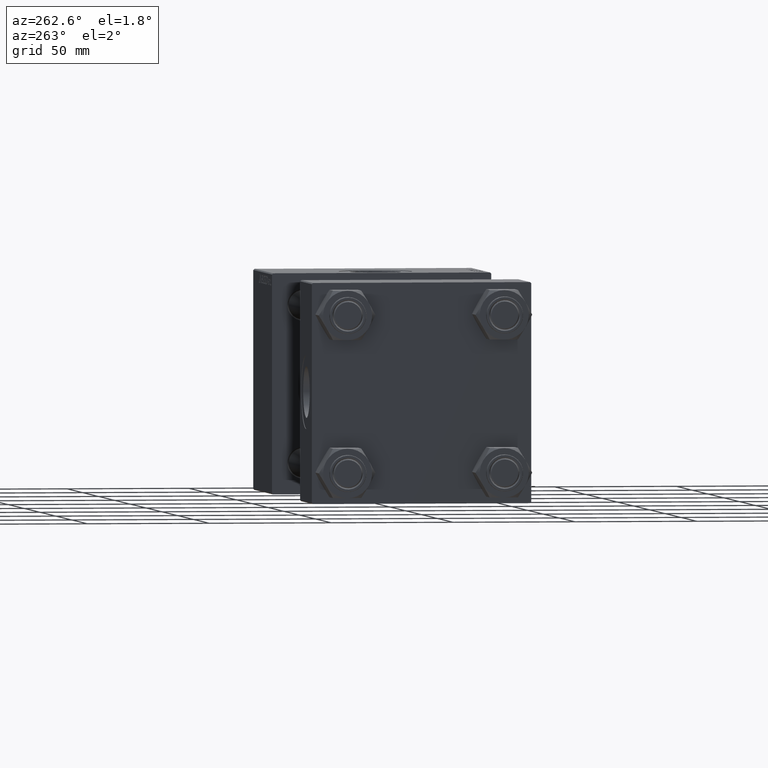
[diagram: clean part render]
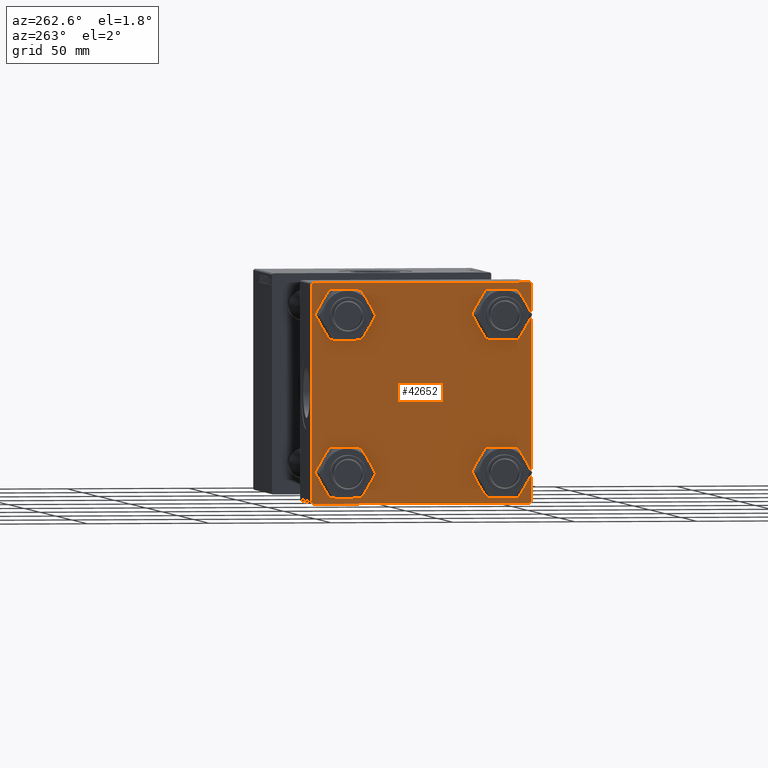
[diagram: same view with one face highlighted and labeled with its STEP entity id]
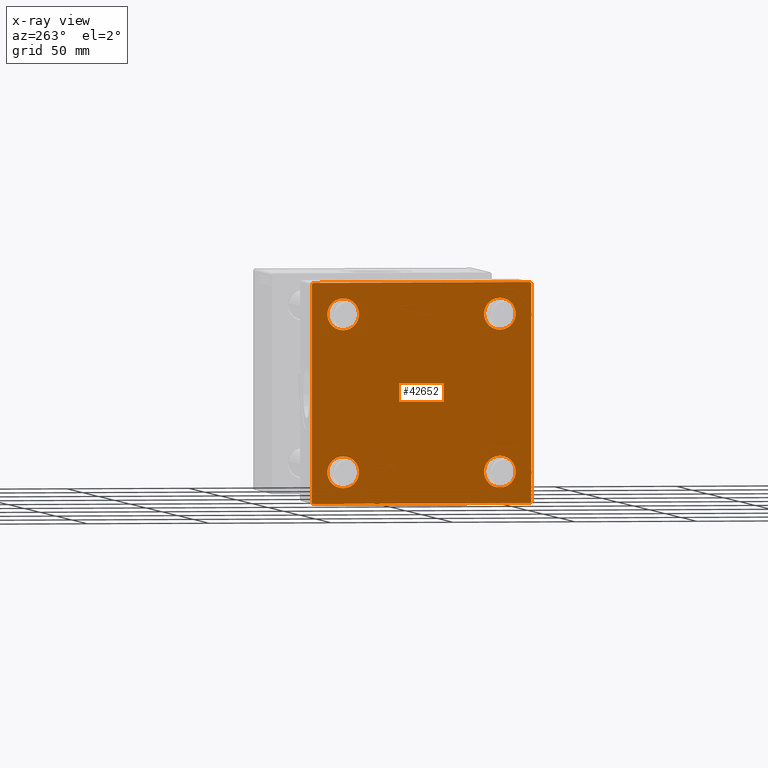
[diagram: x-ray of the same camera — body ghosted, the highlighted face saturated]
A machine part, auxiliary view. The second image highlights one B-rep face of the part: STEP entity #42652.
The next image is the same camera in x-ray: the body ghosted, the highlighted face saturated — about 0% of this face is hidden behind the body in this view.
In plain terms, the highlighted planar face has unit normal (-1, 0, 0).
Its self-contained STEP definition (entity closure, byte-faithful):
#497 = AXIS2_PLACEMENT_3D ( 'NONE', #48897, #6101, #30171 ) ;
#681 = AXIS2_PLACEMENT_3D ( 'NONE', #13271, #33237, #1972 ) ;
#888 = EDGE_CURVE ( 'NONE', #27907, #34247, #5637, .T. ) ;
#1200 = AXIS2_PLACEMENT_3D ( 'NONE', #11142, #38053, #34695 ) ;
#1443 = ORIENTED_EDGE ( 'NONE', *, *, #23439, .T. ) ;
#1493 = CIRCLE ( 'NONE', #681, 6.500000000000019540 ) ;
#1972 = DIRECTION ( 'NONE',  ( 0.000000000000000000, 0.000000000000000000, 1.000000000000000000 ) ) ;
#2043 = VECTOR ( 'NONE', #27558, 1000.000000000000114 ) ;
#2362 = VERTEX_POINT ( 'NONE', #27447 ) ;
#2565 = CARTESIAN_POINT ( 'NONE',  ( 0.000000000000000000, 32.14999999999999147, -38.65000000000001990 ) ) ;
#3160 = DIRECTION ( 'NONE',  ( 0.000000000000000000, 0.7071067811865574537, -0.7071067811865376918 ) ) ;
#3391 = EDGE_LOOP ( 'NONE', ( #7174, #50563 ) ) ;
#4219 = CIRCLE ( 'NONE', #7531, 6.499999999999977796 ) ;
#4892 = ORIENTED_EDGE ( 'NONE', *, *, #41900, .F. ) ;
#5228 = EDGE_CURVE ( 'NONE', #13265, #38776, #48749, .T. ) ;
#5245 = CARTESIAN_POINT ( 'NONE',  ( 0.000000000000000000, -32.14999999999997726, -38.64999999999998437 ) ) ;
#5637 = CIRCLE ( 'NONE', #7293, 6.500000000000019540 ) ;
#6101 = DIRECTION ( 'NONE',  ( 1.000000000000000000, -0.000000000000000000, 0.000000000000000000 ) ) ;
#6465 = CARTESIAN_POINT ( 'NONE',  ( 0.000000000000000000, 45.00000000000000000, 45.00000000000000711 ) ) ;
#6690 = CARTESIAN_POINT ( 'NONE',  ( 0.000000000000000000, -32.14999999999997726, -25.65000000000002700 ) ) ;
#6818 = LINE ( 'NONE', #19606, #17774 ) ;
#7174 = ORIENTED_EDGE ( 'NONE', *, *, #48129, .T. ) ;
#7293 = AXIS2_PLACEMENT_3D ( 'NONE', #27183, #35118, #18983 ) ;
#7529 = CARTESIAN_POINT ( 'NONE',  ( 0.000000000000000000, 44.74999999999936762, 44.75000000000061107 ) ) ;
#7531 = AXIS2_PLACEMENT_3D ( 'NONE', #49874, #14523, #34501 ) ;
#7742 = DIRECTION ( 'NONE',  ( 1.000000000000000000, -0.000000000000000000, 0.000000000000000000 ) ) ;
#8053 = VECTOR ( 'NONE', #20693, 1000.000000000000000 ) ;
#8148 = CARTESIAN_POINT ( 'NONE',  ( 0.000000000000000000, 0.000000000000000000, 0.000000000000000000 ) ) ;
#8398 = FACE_BOUND ( 'NONE', #41011, .T. ) ;
#8907 = FACE_OUTER_BOUND ( 'NONE', #35168, .T. ) ;
#10215 = CARTESIAN_POINT ( 'NONE',  ( 0.000000000000000000, 32.14999999999999147, 25.64999999999997726 ) ) ;
#10503 = DIRECTION ( 'NONE',  ( 0.000000000000000000, 0.000000000000000000, 1.000000000000000000 ) ) ;
#10859 = CARTESIAN_POINT ( 'NONE',  ( 0.000000000000000000, -45.00000000000000000, 44.49999999999998579 ) ) ;
#11142 = CARTESIAN_POINT ( 'NONE',  ( 0.000000000000000000, -32.14999999999997726, -32.15000000000000568 ) ) ;
#12181 = VERTEX_POINT ( 'NONE', #35951 ) ;
#13043 = EDGE_CURVE ( 'NONE', #43005, #30903, #45387, .T. ) ;
#13208 = LINE ( 'NONE', #6465, #48651 ) ;
#13265 = VERTEX_POINT ( 'NONE', #14153 ) ;
#13271 = CARTESIAN_POINT ( 'NONE',  ( 0.000000000000000000, 32.14999999999999147, 32.14999999999999858 ) ) ;
#13898 = CARTESIAN_POINT ( 'NONE',  ( 0.000000000000000000, -44.49999999999994316, -45.00000000000000000 ) ) ;
#13962 = CIRCLE ( 'NONE', #36059, 6.500000000000019540 ) ;
#14021 = CARTESIAN_POINT ( 'NONE',  ( 0.000000000000000000, -45.00000000000000000, 44.99999999999998579 ) ) ;
#14153 = CARTESIAN_POINT ( 'NONE',  ( 0.000000000000000000, 44.50000000000000000, -44.99999999999999289 ) ) ;
#14498 = CIRCLE ( 'NONE', #16978, 6.500000000000019540 ) ;
#14523 = DIRECTION ( 'NONE',  ( 1.000000000000000000, -0.000000000000000000, 0.000000000000000000 ) ) ;
#14834 = EDGE_CURVE ( 'NONE', #25542, #13265, #15772, .T. ) ;
#15579 = AXIS2_PLACEMENT_3D ( 'NONE', #31051, #7742, #19528 ) ;
#15772 = LINE ( 'NONE', #42926, #2043 ) ;
#16063 = CARTESIAN_POINT ( 'NONE',  ( 0.000000000000000000, -32.14999999999997726, 25.65000000000002700 ) ) ;
#16332 = FACE_BOUND ( 'NONE', #3391, .T. ) ;
#16978 = AXIS2_PLACEMENT_3D ( 'NONE', #34057, #33047, #10503 ) ;
#17395 = DIRECTION ( 'NONE',  ( 1.000000000000000000, -0.000000000000000000, 0.000000000000000000 ) ) ;
#17490 = ORIENTED_EDGE ( 'NONE', *, *, #20842, .T. ) ;
#17559 = VERTEX_POINT ( 'NONE', #42413 ) ;
#17774 = VECTOR ( 'NONE', #41928, 1000.000000000000000 ) ;
#18983 = DIRECTION ( 'NONE',  ( 0.000000000000000000, 0.000000000000000000, 1.000000000000000000 ) ) ;
#19274 = CARTESIAN_POINT ( 'NONE',  ( 0.000000000000000000, 45.00000000000000000, 44.49999999999999289 ) ) ;
#19528 = DIRECTION ( 'NONE',  ( 0.000000000000000000, 0.000000000000000000, 1.000000000000000000 ) ) ;
#19606 = CARTESIAN_POINT ( 'NONE',  ( 0.000000000000000000, -44.74999999999873523, -44.75000000000122924 ) ) ;
#20145 = CIRCLE ( 'NONE', #497, 6.499999999999977796 ) ;
#20399 = VERTEX_POINT ( 'NONE', #19274 ) ;
#20473 = ORIENTED_EDGE ( 'NONE', *, *, #34008, .T. ) ;
#20693 = DIRECTION ( 'NONE',  ( 0.000000000000000000, 0.000000000000000000, -1.000000000000000000 ) ) ;
#20842 = EDGE_CURVE ( 'NONE', #46404, #2362, #20145, .T. ) ;
#21149 = ORIENTED_EDGE ( 'NONE', *, *, #28125, .T. ) ;
#21216 = ORIENTED_EDGE ( 'NONE', *, *, #37335, .T. ) ;
#21243 = LINE ( 'NONE', #25089, #43927 ) ;
#22292 = VERTEX_POINT ( 'NONE', #30544 ) ;
#22627 = DIRECTION ( 'NONE',  ( 0.000000000000000000, 0.000000000000000000, -1.000000000000000000 ) ) ;
#22858 = VECTOR ( 'NONE', #3160, 999.9999999999998863 ) ;
#23439 = EDGE_CURVE ( 'NONE', #38776, #17559, #6818, .T. ) ;
#23514 = PLANE ( 'NONE',  #24958 ) ;
#24271 = DIRECTION ( 'NONE',  ( -1.000000000000000000, 0.000000000000000000, -0.000000000000000000 ) ) ;
#24666 = ORIENTED_EDGE ( 'NONE', *, *, #47518, .T. ) ;
#24957 = EDGE_CURVE ( 'NONE', #35419, #22292, #1493, .T. ) ;
#24958 = AXIS2_PLACEMENT_3D ( 'NONE', #8148, #24271, #39921 ) ;
#25089 = CARTESIAN_POINT ( 'NONE',  ( -0.000000000000000000, -44.74999999999999289, 44.74999999999999289 ) ) ;
#25115 = EDGE_CURVE ( 'NONE', #35763, #17559, #49129, .T. ) ;
#25542 = VERTEX_POINT ( 'NONE', #28772 ) ;
#26132 = EDGE_LOOP ( 'NONE', ( #21216, #49958 ) ) ;
#27183 = CARTESIAN_POINT ( 'NONE',  ( 0.000000000000000000, 32.14999999999999147, -32.14999999999999858 ) ) ;
#27447 = CARTESIAN_POINT ( 'NONE',  ( 0.000000000000000000, -32.14999999999997726, 38.64999999999999147 ) ) ;
#27558 = DIRECTION ( 'NONE',  ( -0.000000000000000000, -0.7071067811865474617, -0.7071067811865474617 ) ) ;
#27615 = FACE_BOUND ( 'NONE', #50437, .T. ) ;
#27907 = VERTEX_POINT ( 'NONE', #33323 ) ;
#28006 = ORIENTED_EDGE ( 'NONE', *, *, #25115, .F. ) ;
#28125 = EDGE_CURVE ( 'NONE', #12181, #20399, #42131, .T. ) ;
#28772 = CARTESIAN_POINT ( 'NONE',  ( 0.000000000000000000, 45.00000000000000000, -44.49999999999996447 ) ) ;
#29270 = DIRECTION ( 'NONE',  ( 0.000000000000000000, -1.000000000000000000, -7.709882115452476934E-17 ) ) ;
#29520 = CARTESIAN_POINT ( 'NONE',  ( 0.000000000000000000, 45.00000000000000000, -44.99999999999999289 ) ) ;
#30081 = ORIENTED_EDGE ( 'NONE', *, *, #31687, .T. ) ;
#30171 = DIRECTION ( 'NONE',  ( 0.000000000000000000, 0.000000000000000000, 1.000000000000000000 ) ) ;
#30544 = CARTESIAN_POINT ( 'NONE',  ( 0.000000000000000000, 32.14999999999999147, 38.65000000000001990 ) ) ;
#30570 = ORIENTED_EDGE ( 'NONE', *, *, #5228, .T. ) ;
#30903 = VERTEX_POINT ( 'NONE', #6690 ) ;
#31039 = VECTOR ( 'NONE', #22627, 1000.000000000000000 ) ;
#31051 = CARTESIAN_POINT ( 'NONE',  ( 0.000000000000000000, -32.14999999999997726, 32.15000000000000568 ) ) ;
#31687 = EDGE_CURVE ( 'NONE', #20399, #25542, #34167, .T. ) ;
#31854 = ORIENTED_EDGE ( 'NONE', *, *, #888, .T. ) ;
#31952 = VECTOR ( 'NONE', #29270, 1000.000000000000000 ) ;
#32770 = CARTESIAN_POINT ( 'NONE',  ( 0.000000000000000000, 32.14999999999999147, -32.14999999999999858 ) ) ;
#33047 = DIRECTION ( 'NONE',  ( 1.000000000000000000, -0.000000000000000000, 0.000000000000000000 ) ) ;
#33237 = DIRECTION ( 'NONE',  ( 1.000000000000000000, -0.000000000000000000, 0.000000000000000000 ) ) ;
#33323 = CARTESIAN_POINT ( 'NONE',  ( 0.000000000000000000, 32.14999999999999147, -25.64999999999997726 ) ) ;
#33565 = CIRCLE ( 'NONE', #15579, 6.499999999999977796 ) ;
#34008 = EDGE_CURVE ( 'NONE', #2362, #46404, #33565, .T. ) ;
#34057 = CARTESIAN_POINT ( 'NONE',  ( 0.000000000000000000, 32.14999999999999147, 32.14999999999999858 ) ) ;
#34123 = DIRECTION ( 'NONE',  ( 0.000000000000000000, -1.000000000000000000, -2.312964634635742957E-16 ) ) ;
#34167 = LINE ( 'NONE', #49799, #31039 ) ;
#34247 = VERTEX_POINT ( 'NONE', #2565 ) ;
#34501 = DIRECTION ( 'NONE',  ( 0.000000000000000000, 0.000000000000000000, 1.000000000000000000 ) ) ;
#34695 = DIRECTION ( 'NONE',  ( 0.000000000000000000, 0.000000000000000000, 1.000000000000000000 ) ) ;
#35118 = DIRECTION ( 'NONE',  ( 1.000000000000000000, -0.000000000000000000, 0.000000000000000000 ) ) ;
#35168 = EDGE_LOOP ( 'NONE', ( #30081, #38400, #30570, #1443, #28006, #24666, #4892, #21149 ) ) ;
#35277 = CARTESIAN_POINT ( 'NONE',  ( 0.000000000000000000, -44.49999999999997158, 44.99999999999998579 ) ) ;
#35416 = EDGE_CURVE ( 'NONE', #34247, #27907, #13962, .T. ) ;
#35419 = VERTEX_POINT ( 'NONE', #10215 ) ;
#35763 = VERTEX_POINT ( 'NONE', #10859 ) ;
#35951 = CARTESIAN_POINT ( 'NONE',  ( 0.000000000000000000, 44.49999999999997158, 45.00000000000000711 ) ) ;
#36059 = AXIS2_PLACEMENT_3D ( 'NONE', #32770, #17395, #40729 ) ;
#36464 = ORIENTED_EDGE ( 'NONE', *, *, #35416, .T. ) ;
#37335 = EDGE_CURVE ( 'NONE', #30903, #43005, #4219, .T. ) ;
#37840 = DIRECTION ( 'NONE',  ( -0.000000000000000000, 0.7071067811865474617, 0.7071067811865474617 ) ) ;
#38053 = DIRECTION ( 'NONE',  ( 1.000000000000000000, -0.000000000000000000, 0.000000000000000000 ) ) ;
#38400 = ORIENTED_EDGE ( 'NONE', *, *, #14834, .T. ) ;
#38776 = VERTEX_POINT ( 'NONE', #13898 ) ;
#39921 = DIRECTION ( 'NONE',  ( -0.000000000000000000, 0.000000000000000000, 1.000000000000000000 ) ) ;
#40729 = DIRECTION ( 'NONE',  ( 0.000000000000000000, 0.000000000000000000, 1.000000000000000000 ) ) ;
#41011 = EDGE_LOOP ( 'NONE', ( #31854, #36464 ) ) ;
#41900 = EDGE_CURVE ( 'NONE', #12181, #49505, #13208, .T. ) ;
#41928 = DIRECTION ( 'NONE',  ( 0.000000000000000000, -0.7071067811865672237, 0.7071067811865279218 ) ) ;
#42131 = LINE ( 'NONE', #7529, #22858 ) ;
#42413 = CARTESIAN_POINT ( 'NONE',  ( 0.000000000000000000, -45.00000000000000000, -44.49999999999997158 ) ) ;
#42652 = ADVANCED_FACE ( 'NONE', ( #27615, #47339, #8398, #16332, #8907 ), #23514, .T. ) ;
#42926 = CARTESIAN_POINT ( 'NONE',  ( 0.000000000000000000, 44.74999999999999289, -44.74999999999999289 ) ) ;
#43005 = VERTEX_POINT ( 'NONE', #5245 ) ;
#43927 = VECTOR ( 'NONE', #37840, 1000.000000000000114 ) ;
#45387 = CIRCLE ( 'NONE', #1200, 6.499999999999977796 ) ;
#46404 = VERTEX_POINT ( 'NONE', #16063 ) ;
#47339 = FACE_BOUND ( 'NONE', #26132, .T. ) ;
#47518 = EDGE_CURVE ( 'NONE', #35763, #49505, #21243, .T. ) ;
#48129 = EDGE_CURVE ( 'NONE', #22292, #35419, #14498, .T. ) ;
#48651 = VECTOR ( 'NONE', #34123, 1000.000000000000000 ) ;
#48749 = LINE ( 'NONE', #29520, #31952 ) ;
#48897 = CARTESIAN_POINT ( 'NONE',  ( 0.000000000000000000, -32.14999999999997726, 32.15000000000000568 ) ) ;
#49129 = LINE ( 'NONE', #14021, #8053 ) ;
#49505 = VERTEX_POINT ( 'NONE', #35277 ) ;
#49799 = CARTESIAN_POINT ( 'NONE',  ( 0.000000000000000000, 45.00000000000000000, 45.00000000000000711 ) ) ;
#49874 = CARTESIAN_POINT ( 'NONE',  ( 0.000000000000000000, -32.14999999999997726, -32.15000000000000568 ) ) ;
#49958 = ORIENTED_EDGE ( 'NONE', *, *, #13043, .T. ) ;
#50437 = EDGE_LOOP ( 'NONE', ( #20473, #17490 ) ) ;
#50563 = ORIENTED_EDGE ( 'NONE', *, *, #24957, .T. ) ;